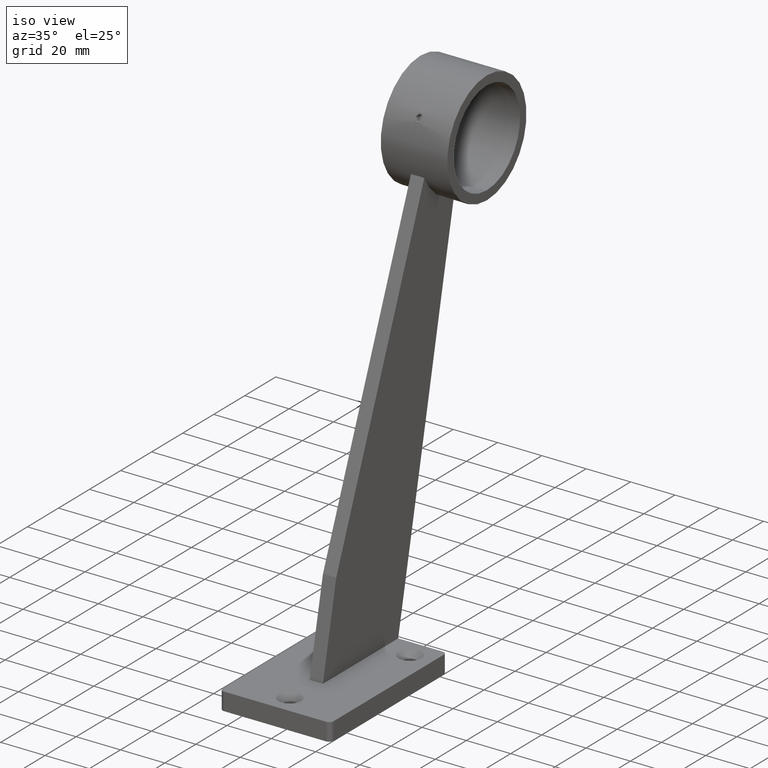
[diagram: clean part render]
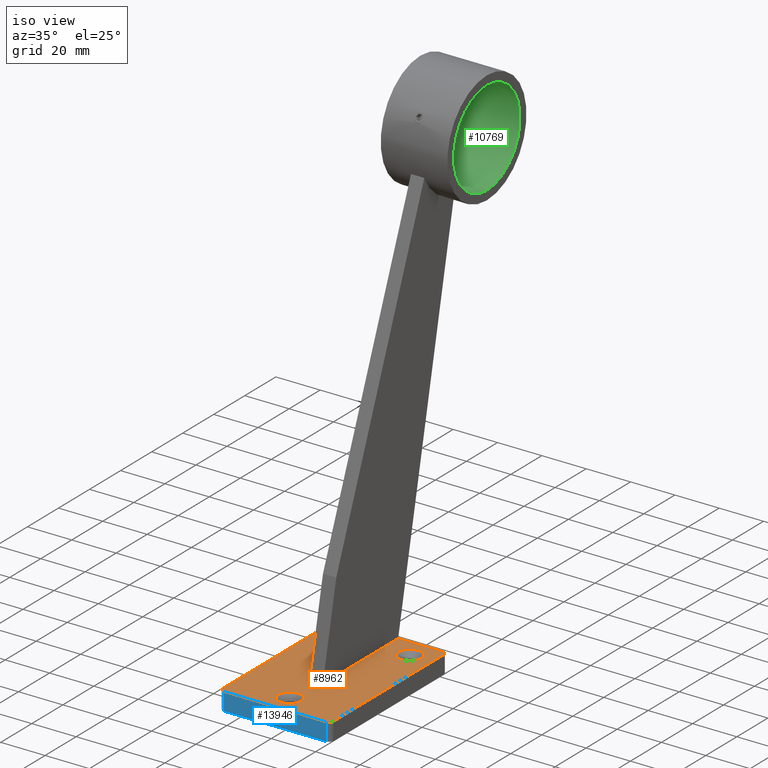
[diagram: same view with three faces highlighted in distinct colors, each labeled with its STEP entity id]
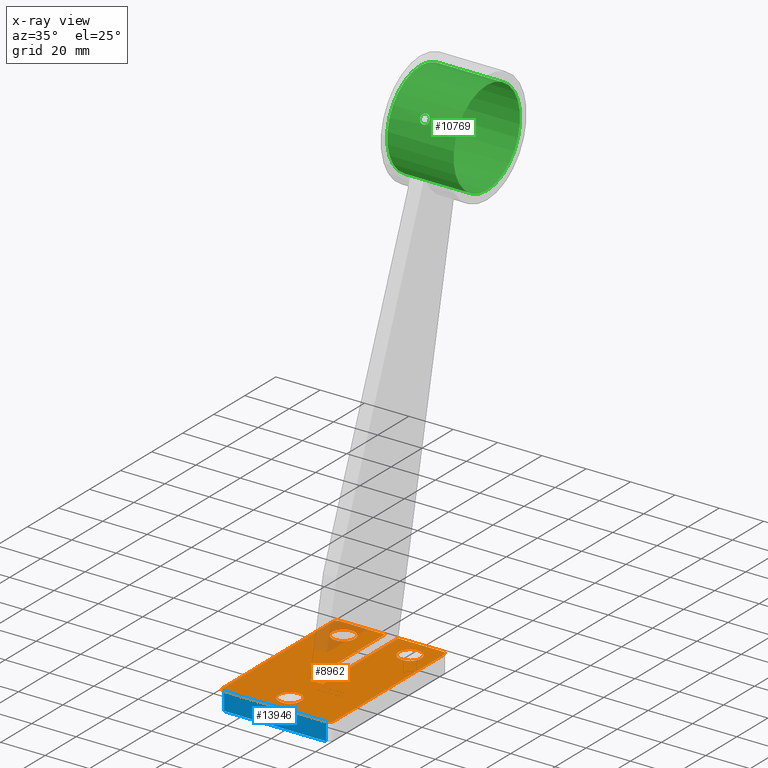
[diagram: x-ray of the same camera — body ghosted, the three highlighted faces saturated]
A machine part, iso view with three faces highlighted in distinct colors.
The next image is the same camera in x-ray (body ghosted, the three faces saturated) — at least one of them is partly hidden behind the body in this view.
Their STEP definitions:

[orange] entity #8962 — the highlighted planar face has unit normal (0, 0, 1).
#169 = VECTOR ( 'NONE', #6945, 1000.000000000000000 ) ;
#170 = VECTOR ( 'NONE', #673, 1000.000000000000000 ) ;
#673 = DIRECTION ( 'NONE',  ( 0.000000000000000000, -1.000000000000000000, 0.000000000000000000 ) ) ;
#944 = VERTEX_POINT ( 'NONE', #5038 ) ;
#949 = AXIS2_PLACEMENT_3D ( 'NONE', #1888, #1795, #11028 ) ;
#1007 = CARTESIAN_POINT ( 'NONE',  ( 22.99999999999999645, 35.50000000000000000, 8.000000000000000000 ) ) ;
#1115 = CARTESIAN_POINT ( 'NONE',  ( -23.00000000000000000, -35.50000000000000000, 8.000000000000000000 ) ) ;
#1157 = DIRECTION ( 'NONE',  ( -0.000000000000000000, 0.000000000000000000, 1.000000000000000000 ) ) ;
#1194 = EDGE_LOOP ( 'NONE', ( #5196 ) ) ;
#1216 = EDGE_LOOP ( 'NONE', ( #9152, #3372, #4034, #12821, #7150, #13023, #6757, #12934, #5566, #7648, #1704, #8627 ) ) ;
#1374 = EDGE_LOOP ( 'NONE', ( #6038 ) ) ;
#1525 = VERTEX_POINT ( 'NONE', #14377 ) ;
#1670 = CARTESIAN_POINT ( 'NONE',  ( 5.099999999999999645, -27.99999999999999645, 8.000000000000000000 ) ) ;
#1704 = ORIENTED_EDGE ( 'NONE', *, *, #12294, .T. ) ;
#1795 = DIRECTION ( 'NONE',  ( -0.000000000000000000, -0.000000000000000000, 1.000000000000000000 ) ) ;
#1858 = CARTESIAN_POINT ( 'NONE',  ( -24.99999999999999645, -37.50000000000000000, 8.000000000000000000 ) ) ;
#1888 = CARTESIAN_POINT ( 'NONE',  ( 15.00000000000000355, 27.99999999999999645, 8.000000000000000000 ) ) ;
#1964 = CIRCLE ( 'NONE', #9180, 2.000000000000001776 ) ;
#2031 = CIRCLE ( 'NONE', #14310, 1.999999999999998224 ) ;
#2061 = CIRCLE ( 'NONE', #5393, 2.000000000000001776 ) ;
#2191 = CARTESIAN_POINT ( 'NONE',  ( 0.000000000000000000, 0.000000000000000000, 8.000000000000000000 ) ) ;
#2218 = DIRECTION ( 'NONE',  ( 1.000000000000000000, 0.000000000000000000, 0.000000000000000000 ) ) ;
#2224 = VECTOR ( 'NONE', #9117, 1000.000000000000000 ) ;
#2294 = VERTEX_POINT ( 'NONE', #13479 ) ;
#2427 = EDGE_CURVE ( 'NONE', #6153, #6153, #8975, .T. ) ;
#2480 = FACE_BOUND ( 'NONE', #11087, .T. ) ;
#2483 = EDGE_CURVE ( 'NONE', #14098, #1525, #9879, .T. ) ;
#2528 = CARTESIAN_POINT ( 'NONE',  ( 3.000000000000000000, 0.000000000000000000, 8.000000000000000000 ) ) ;
#2546 = VERTEX_POINT ( 'NONE', #8990 ) ;
#3161 = CIRCLE ( 'NONE', #949, 5.100000000000000533 ) ;
#3347 = DIRECTION ( 'NONE',  ( -0.000000000000000000, 0.000000000000000000, 1.000000000000000000 ) ) ;
#3372 = ORIENTED_EDGE ( 'NONE', *, *, #13991, .T. ) ;
#3377 = CARTESIAN_POINT ( 'NONE',  ( 25.00000000000000000, 37.50000000000000000, 8.000000000000000000 ) ) ;
#3718 = CARTESIAN_POINT ( 'NONE',  ( -25.00000000000000355, 37.50000000000000000, 8.000000000000000000 ) ) ;
#3852 = VERTEX_POINT ( 'NONE', #12949 ) ;
#3857 = AXIS2_PLACEMENT_3D ( 'NONE', #5085, #10632, #11902 ) ;
#3903 = LINE ( 'NONE', #1858, #13766 ) ;
#4004 = DIRECTION ( 'NONE',  ( 1.000000000000000000, 0.000000000000000000, 0.000000000000000000 ) ) ;
#4034 = ORIENTED_EDGE ( 'NONE', *, *, #11790, .T. ) ;
#4142 = AXIS2_PLACEMENT_3D ( 'NONE', #1007, #12529, #2218 ) ;
#4171 = CARTESIAN_POINT ( 'NONE',  ( -3.000000000000000000, 37.49999999999999289, 8.000000000000001776 ) ) ;
#4859 = LINE ( 'NONE', #3718, #11120 ) ;
#4985 = FACE_BOUND ( 'NONE', #1194, .T. ) ;
#5001 = DIRECTION ( 'NONE',  ( -0.000000000000000000, -0.000000000000000000, 1.000000000000000000 ) ) ;
#5038 = CARTESIAN_POINT ( 'NONE',  ( 20.10000000000000497, 27.99999999999999645, 8.000000000000000000 ) ) ;
#5085 = CARTESIAN_POINT ( 'NONE',  ( 0.000000000000000000, -27.99999999999999645, 8.000000000000000000 ) ) ;
#5196 = ORIENTED_EDGE ( 'NONE', *, *, #13659, .F. ) ;
#5229 = VERTEX_POINT ( 'NONE', #10388 ) ;
#5393 = AXIS2_PLACEMENT_3D ( 'NONE', #8119, #5839, #13965 ) ;
#5409 = VECTOR ( 'NONE', #11841, 1000.000000000000000 ) ;
#5566 = ORIENTED_EDGE ( 'NONE', *, *, #6973, .T. ) ;
#5819 = LINE ( 'NONE', #3377, #2224 ) ;
#5839 = DIRECTION ( 'NONE',  ( -0.000000000000000000, 0.000000000000000000, 1.000000000000000000 ) ) ;
#6038 = ORIENTED_EDGE ( 'NONE', *, *, #10614, .F. ) ;
#6153 = VERTEX_POINT ( 'NONE', #9842 ) ;
#6264 = VERTEX_POINT ( 'NONE', #10945 ) ;
#6434 = AXIS2_PLACEMENT_3D ( 'NONE', #14255, #5001, #4004 ) ;
#6476 = EDGE_CURVE ( 'NONE', #13806, #2294, #1964, .T. ) ;
#6587 = DIRECTION ( 'NONE',  ( 1.000000000000000000, 0.000000000000000000, 0.000000000000000000 ) ) ;
#6757 = ORIENTED_EDGE ( 'NONE', *, *, #14510, .T. ) ;
#6938 = VERTEX_POINT ( 'NONE', #14159 ) ;
#6945 = DIRECTION ( 'NONE',  ( 9.251858538542971581E-17, -1.000000000000000000, 0.000000000000000000 ) ) ;
#6973 = EDGE_CURVE ( 'NONE', #2546, #8464, #4859, .T. ) ;
#7073 = CIRCLE ( 'NONE', #4142, 1.999999999999998224 ) ;
#7150 = ORIENTED_EDGE ( 'NONE', *, *, #9188, .T. ) ;
#7413 = VERTEX_POINT ( 'NONE', #1670 ) ;
#7605 = LINE ( 'NONE', #9552, #14565 ) ;
#7648 = ORIENTED_EDGE ( 'NONE', *, *, #11470, .T. ) ;
#8119 = CARTESIAN_POINT ( 'NONE',  ( -23.00000000000000711, 35.50000000000000000, 8.000000000000000000 ) ) ;
#8459 = ORIENTED_EDGE ( 'NONE', *, *, #2427, .F. ) ;
#8464 = VERTEX_POINT ( 'NONE', #12672 ) ;
#8627 = ORIENTED_EDGE ( 'NONE', *, *, #2483, .F. ) ;
#8864 = CARTESIAN_POINT ( 'NONE',  ( -24.99999999999999645, -35.50000000000000000, 8.000000000000000000 ) ) ;
#8959 = FACE_OUTER_BOUND ( 'NONE', #1216, .T. ) ;
#8962 = ADVANCED_FACE ( 'NONE', ( #2480, #9338, #4985, #8959 ), #13560, .T. ) ;
#8975 = CIRCLE ( 'NONE', #6434, 5.099999999999998757 ) ;
#8990 = CARTESIAN_POINT ( 'NONE',  ( 22.99999999999999645, 37.50000000000000000, 8.000000000000000000 ) ) ;
#9117 = DIRECTION ( 'NONE',  ( -4.625929269271485791E-17, 1.000000000000000000, -0.000000000000000000 ) ) ;
#9152 = ORIENTED_EDGE ( 'NONE', *, *, #14842, .T. ) ;
#9180 = AXIS2_PLACEMENT_3D ( 'NONE', #1115, #1157, #13847 ) ;
#9188 = EDGE_CURVE ( 'NONE', #2294, #6264, #3903, .T. ) ;
#9215 = CARTESIAN_POINT ( 'NONE',  ( 3.000000000000000000, -11.00000000000000355, 8.000000000000000000 ) ) ;
#9338 = FACE_BOUND ( 'NONE', #1374, .T. ) ;
#9447 = CARTESIAN_POINT ( 'NONE',  ( -25.00000000000000355, 35.50000000000000000, 8.000000000000000000 ) ) ;
#9552 = CARTESIAN_POINT ( 'NONE',  ( -25.00000000000000355, 37.50000000000000000, 8.000000000000000000 ) ) ;
#9564 = AXIS2_PLACEMENT_3D ( 'NONE', #2191, #3347, #14748 ) ;
#9791 = CARTESIAN_POINT ( 'NONE',  ( 23.00000000000000355, -35.50000000000000000, 8.000000000000000000 ) ) ;
#9839 = CARTESIAN_POINT ( 'NONE',  ( -3.000000000000000000, 0.000000000000000000, 8.000000000000000000 ) ) ;
#9842 = CARTESIAN_POINT ( 'NONE',  ( -9.900000000000005684, 27.99999999999999645, 8.000000000000000000 ) ) ;
#9879 = LINE ( 'NONE', #9839, #170 ) ;
#9906 = LINE ( 'NONE', #2528, #5409 ) ;
#10388 = CARTESIAN_POINT ( 'NONE',  ( 3.000000000000000000, -11.00000000000000355, 8.000000000000000000 ) ) ;
#10614 = EDGE_CURVE ( 'NONE', #944, #944, #3161, .T. ) ;
#10632 = DIRECTION ( 'NONE',  ( -0.000000000000000000, -0.000000000000000000, 1.000000000000000000 ) ) ;
#10945 = CARTESIAN_POINT ( 'NONE',  ( 23.00000000000000355, -37.50000000000000000, 8.000000000000000000 ) ) ;
#11027 = CIRCLE ( 'NONE', #3857, 5.099999999999999645 ) ;
#11028 = DIRECTION ( 'NONE',  ( 1.000000000000000000, 0.000000000000000000, 0.000000000000000000 ) ) ;
#11087 = EDGE_LOOP ( 'NONE', ( #8459 ) ) ;
#11120 = VECTOR ( 'NONE', #11816, 1000.000000000000000 ) ;
#11470 = EDGE_CURVE ( 'NONE', #8464, #5229, #9906, .T. ) ;
#11492 = DIRECTION ( 'NONE',  ( -1.000000000000000000, -0.000000000000000000, -0.000000000000000000 ) ) ;
#11790 = EDGE_CURVE ( 'NONE', #13562, #13806, #13621, .T. ) ;
#11816 = DIRECTION ( 'NONE',  ( -1.000000000000000000, -0.000000000000000000, -0.000000000000000000 ) ) ;
#11841 = DIRECTION ( 'NONE',  ( 0.000000000000000000, -1.000000000000000000, 0.000000000000000000 ) ) ;
#11902 = DIRECTION ( 'NONE',  ( 1.000000000000000000, 0.000000000000000000, 0.000000000000000000 ) ) ;
#12057 = DIRECTION ( 'NONE',  ( -1.000000000000000000, -0.000000000000000000, -0.000000000000000000 ) ) ;
#12294 = EDGE_CURVE ( 'NONE', #5229, #1525, #14607, .T. ) ;
#12307 = VERTEX_POINT ( 'NONE', #14821 ) ;
#12529 = DIRECTION ( 'NONE',  ( -0.000000000000000000, 0.000000000000000000, 1.000000000000000000 ) ) ;
#12672 = CARTESIAN_POINT ( 'NONE',  ( 3.000000000000000000, 37.49999999999999289, 8.000000000000001776 ) ) ;
#12821 = ORIENTED_EDGE ( 'NONE', *, *, #6476, .T. ) ;
#12934 = ORIENTED_EDGE ( 'NONE', *, *, #14535, .T. ) ;
#12949 = CARTESIAN_POINT ( 'NONE',  ( -23.00000000000000711, 37.50000000000000000, 8.000000000000000000 ) ) ;
#13023 = ORIENTED_EDGE ( 'NONE', *, *, #14818, .T. ) ;
#13266 = DIRECTION ( 'NONE',  ( 1.000000000000000000, 0.000000000000000000, 0.000000000000000000 ) ) ;
#13479 = CARTESIAN_POINT ( 'NONE',  ( -23.00000000000000000, -37.50000000000000000, 8.000000000000000000 ) ) ;
#13547 = VECTOR ( 'NONE', #11492, 1000.000000000000000 ) ;
#13560 = PLANE ( 'NONE',  #9564 ) ;
#13562 = VERTEX_POINT ( 'NONE', #9447 ) ;
#13621 = LINE ( 'NONE', #14777, #169 ) ;
#13659 = EDGE_CURVE ( 'NONE', #7413, #7413, #11027, .T. ) ;
#13766 = VECTOR ( 'NONE', #6587, 1000.000000000000000 ) ;
#13806 = VERTEX_POINT ( 'NONE', #8864 ) ;
#13847 = DIRECTION ( 'NONE',  ( 1.000000000000000000, 0.000000000000000000, 0.000000000000000000 ) ) ;
#13965 = DIRECTION ( 'NONE',  ( 1.000000000000000000, 0.000000000000000000, 0.000000000000000000 ) ) ;
#13991 = EDGE_CURVE ( 'NONE', #3852, #13562, #2061, .T. ) ;
#14098 = VERTEX_POINT ( 'NONE', #4171 ) ;
#14159 = CARTESIAN_POINT ( 'NONE',  ( 25.00000000000000000, 35.50000000000000000, 8.000000000000000000 ) ) ;
#14255 = CARTESIAN_POINT ( 'NONE',  ( -15.00000000000000533, 27.99999999999999645, 8.000000000000000000 ) ) ;
#14310 = AXIS2_PLACEMENT_3D ( 'NONE', #9791, #14312, #13266 ) ;
#14312 = DIRECTION ( 'NONE',  ( -0.000000000000000000, 0.000000000000000000, 1.000000000000000000 ) ) ;
#14377 = CARTESIAN_POINT ( 'NONE',  ( -3.000000000000000000, -11.00000000000000355, 8.000000000000000000 ) ) ;
#14510 = EDGE_CURVE ( 'NONE', #12307, #6938, #5819, .T. ) ;
#14535 = EDGE_CURVE ( 'NONE', #6938, #2546, #7073, .T. ) ;
#14565 = VECTOR ( 'NONE', #12057, 1000.000000000000000 ) ;
#14607 = LINE ( 'NONE', #9215, #13547 ) ;
#14748 = DIRECTION ( 'NONE',  ( 1.000000000000000000, 0.000000000000000000, 0.000000000000000000 ) ) ;
#14777 = CARTESIAN_POINT ( 'NONE',  ( -25.00000000000000355, 37.50000000000000000, 8.000000000000000000 ) ) ;
#14818 = EDGE_CURVE ( 'NONE', #6264, #12307, #2031, .T. ) ;
#14821 = CARTESIAN_POINT ( 'NONE',  ( 25.00000000000000355, -35.50000000000000000, 8.000000000000000000 ) ) ;
#14842 = EDGE_CURVE ( 'NONE', #14098, #3852, #7605, .T. ) ;

[blue] entity #13946 — the highlighted planar face has unit normal (0, 1, 0).
#507 = VECTOR ( 'NONE', #1189, 1000.000000000000000 ) ;
#1189 = DIRECTION ( 'NONE',  ( 1.000000000000000000, 0.000000000000000000, 0.000000000000000000 ) ) ;
#1858 = CARTESIAN_POINT ( 'NONE',  ( -24.99999999999999645, -37.50000000000000000, 8.000000000000000000 ) ) ;
#1950 = LINE ( 'NONE', #5754, #507 ) ;
#2034 = AXIS2_PLACEMENT_3D ( 'NONE', #6702, #10234, #8977 ) ;
#2294 = VERTEX_POINT ( 'NONE', #13479 ) ;
#2612 = EDGE_CURVE ( 'NONE', #6374, #11959, #1950, .T. ) ;
#3903 = LINE ( 'NONE', #1858, #13766 ) ;
#4134 = ORIENTED_EDGE ( 'NONE', *, *, #9090, .T. ) ;
#4481 = LINE ( 'NONE', #8510, #13974 ) ;
#4800 = CARTESIAN_POINT ( 'NONE',  ( 23.00000000000000355, -37.50000000000000000, 8.000000000000000000 ) ) ;
#5632 = CARTESIAN_POINT ( 'NONE',  ( -23.00000000000000000, -37.50000000000000000, 0.000000000000000000 ) ) ;
#5754 = CARTESIAN_POINT ( 'NONE',  ( -24.99999999999999645, -37.50000000000000000, 0.000000000000000000 ) ) ;
#5902 = DIRECTION ( 'NONE',  ( -0.000000000000000000, -0.000000000000000000, 1.000000000000000000 ) ) ;
#5933 = CARTESIAN_POINT ( 'NONE',  ( 23.00000000000000355, -37.50000000000000000, 0.000000000000000000 ) ) ;
#6264 = VERTEX_POINT ( 'NONE', #10945 ) ;
#6374 = VERTEX_POINT ( 'NONE', #5632 ) ;
#6587 = DIRECTION ( 'NONE',  ( 1.000000000000000000, 0.000000000000000000, 0.000000000000000000 ) ) ;
#6702 = CARTESIAN_POINT ( 'NONE',  ( -24.99999999999999645, -37.50000000000000000, 8.000000000000000000 ) ) ;
#6751 = PLANE ( 'NONE',  #2034 ) ;
#6965 = LINE ( 'NONE', #4800, #11955 ) ;
#7617 = FACE_OUTER_BOUND ( 'NONE', #13124, .T. ) ;
#7839 = EDGE_CURVE ( 'NONE', #2294, #6374, #4481, .T. ) ;
#8510 = CARTESIAN_POINT ( 'NONE',  ( -23.00000000000000000, -37.50000000000000000, 8.000000000000000000 ) ) ;
#8977 = DIRECTION ( 'NONE',  ( 0.000000000000000000, -0.000000000000000000, 1.000000000000000000 ) ) ;
#9090 = EDGE_CURVE ( 'NONE', #11959, #6264, #6965, .T. ) ;
#9188 = EDGE_CURVE ( 'NONE', #2294, #6264, #3903, .T. ) ;
#10234 = DIRECTION ( 'NONE',  ( 0.000000000000000000, 1.000000000000000000, 0.000000000000000000 ) ) ;
#10718 = ORIENTED_EDGE ( 'NONE', *, *, #7839, .T. ) ;
#10945 = CARTESIAN_POINT ( 'NONE',  ( 23.00000000000000355, -37.50000000000000000, 8.000000000000000000 ) ) ;
#11955 = VECTOR ( 'NONE', #5902, 1000.000000000000000 ) ;
#11959 = VERTEX_POINT ( 'NONE', #5933 ) ;
#13124 = EDGE_LOOP ( 'NONE', ( #14235, #10718, #13950, #4134 ) ) ;
#13155 = DIRECTION ( 'NONE',  ( -0.000000000000000000, 0.000000000000000000, -1.000000000000000000 ) ) ;
#13479 = CARTESIAN_POINT ( 'NONE',  ( -23.00000000000000000, -37.50000000000000000, 8.000000000000000000 ) ) ;
#13766 = VECTOR ( 'NONE', #6587, 1000.000000000000000 ) ;
#13946 = ADVANCED_FACE ( 'NONE', ( #7617 ), #6751, .F. ) ;
#13950 = ORIENTED_EDGE ( 'NONE', *, *, #2612, .T. ) ;
#13974 = VECTOR ( 'NONE', #13155, 1000.000000000000000 ) ;
#14235 = ORIENTED_EDGE ( 'NONE', *, *, #9188, .F. ) ;

[green] entity #10769 — the highlighted cylindrical surface (bore or boss wall) has radius 21.4 mm, axis along (1, 0, 0).
#288 = DIRECTION ( 'NONE',  ( 0.000000000000000000, 0.000000000000000000, -1.000000000000000000 ) ) ;
#436 = CARTESIAN_POINT ( 'NONE',  ( 1.280292752947052026, 58.18835474311134703, 209.2209653528536535 ) ) ;
#491 = CARTESIAN_POINT ( 'NONE',  ( 2.099850055833622609, 58.82945200548817866, 210.4616328400623786 ) ) ;
#539 = CARTESIAN_POINT ( 'NONE',  ( 0.6772246510522037521, 58.05122871341706769, 208.9279391555240295 ) ) ;
#592 = B_SPLINE_CURVE_WITH_KNOTS ( 'NONE', 3,
 ( #9651, #841, #11915, #8622, #539, #13121, #7372, #436, #5010, #5159, #8480, #13022, #491, #6164, #1951, #1643, #1598, #14176, #9702, #2802, #11967, #10004, #2747, #10835, #6263, #7319, #3106, #14564, #7737, #4268, #9003, #894, #4483, #3371, #9108, #11189, #13525, #943, #6784, #3266, #14672, #7993, #12375, #13686, #9056, #2165, #6722, #12472, #11387, #1106, #3318, #7951, #996, #2252 ),
 .UNSPECIFIED., .T., .F.,
 ( 4, 2, 2, 2, 2, 2, 2, 2, 2, 2, 2, 2, 2, 2, 2, 2, 2, 2, 2, 2, 2, 2, 2, 2, 2, 2, 4 ),
 ( 0.000000000000000000, 0.0004105460817641443604, 0.0008210921635282887208, 0.001231638245292433244, 0.001642184327056577442, 0.002463276490584872126, 0.003284368654113166593, 0.003694914735877272843, 0.004105460817641379094, 0.004516006899405484477, 0.004926552981169590728, 0.005337099062933696979, 0.005747645144697802362, 0.006158191226461907745, 0.006568737308226013996, 0.007389829471754224763, 0.008210921635282435530, 0.008621467717046561730, 0.009032013798810686195, 0.009442559880574812395, 0.009853105962338936860, 0.01026365204410306479, 0.01067419812586718926, 0.01108474420763131546, 0.01149529028939543993, 0.01231638245292363161, 0.01313747461645182329 ),
 .UNSPECIFIED. ) ;
#675 = CARTESIAN_POINT ( 'NONE',  ( -15.00000000000000000, 77.50000000000001421, 178.6000000000000227 ) ) ;
#700 = CIRCLE ( 'NONE', #14620, 21.40000000000000213 ) ;
#841 = CARTESIAN_POINT ( 'NONE',  ( 0.1388255791541870565, 58.00650521186400255, 208.8297033327804115 ) ) ;
#894 = CARTESIAN_POINT ( 'NONE',  ( -1.055424637954775147, 59.95316902837753048, 212.2507038859057786 ) ) ;
#901 = DIRECTION ( 'NONE',  ( 1.000000000000000000, 0.000000000000000000, 0.000000000000000000 ) ) ;
#943 = CARTESIAN_POINT ( 'NONE',  ( -1.991933249782538828, 59.31559492339773954, 211.2828885504668222 ) ) ;
#996 = CARTESIAN_POINT ( 'NONE',  ( -0.2776511583083409729, 58.00650521186400965, 208.8297033327802978 ) ) ;
#1000 = EDGE_CURVE ( 'NONE', #3488, #3488, #700, .T. ) ;
#1106 = CARTESIAN_POINT ( 'NONE',  ( -1.292601770391524907, 58.18454563677648395, 209.2147143527323863 ) ) ;
#1598 = CARTESIAN_POINT ( 'NONE',  ( 1.993166452371324171, 59.31368523552086458, 211.2798116691968175 ) ) ;
#1643 = CARTESIAN_POINT ( 'NONE',  ( 2.032825320515954104, 59.24494008579365101, 211.1683005494737984 ) ) ;
#1951 = CARTESIAN_POINT ( 'NONE',  ( 2.086426510082270980, 59.10577573580327737, 210.9375803244171266 ) ) ;
#1994 = DIRECTION ( 'NONE',  ( 1.000000000000000000, -0.000000000000000000, -0.000000000000000000 ) ) ;
#2165 = CARTESIAN_POINT ( 'NONE',  ( -1.887955711688799942, 58.51931574116694890, 209.8848286782223909 ) ) ;
#2252 = CARTESIAN_POINT ( 'NONE',  ( -2.846030702774449139E-16, 58.00650521186400965, 208.8297033327803831 ) ) ;
#2747 = CARTESIAN_POINT ( 'NONE',  ( 1.281578892835677941, 59.85800628916003063, 212.1130459126289054 ) ) ;
#2802 = CARTESIAN_POINT ( 'NONE',  ( 1.670308372240219663, 59.64005640757602578, 211.7896306247975531 ) ) ;
#3008 = CARTESIAN_POINT ( 'NONE',  ( -15.00000000000000000, 77.50000000000001421, 200.0000000000000000 ) ) ;
#3106 = CARTESIAN_POINT ( 'NONE',  ( 0.5463057129171402515, 60.06697456493678544, 212.4117023477625139 ) ) ;
#3266 = CARTESIAN_POINT ( 'NONE',  ( -2.086124644323506860, 59.10682865877154768, 210.9393451425146111 ) ) ;
#3318 = CARTESIAN_POINT ( 'NONE',  ( -1.058614920235633416, 58.11794712172900290, 209.0723281947732914 ) ) ;
#3371 = CARTESIAN_POINT ( 'NONE',  ( -1.580385098386414944, 59.70080613838188555, 211.8809972289016628 ) ) ;
#3488 = VERTEX_POINT ( 'NONE', #13161 ) ;
#3631 = CIRCLE ( 'NONE', #6930, 21.40000000000000213 ) ;
#4268 = CARTESIAN_POINT ( 'NONE',  ( -0.2733982715196794921, 60.10656404147502485, 212.4670921054958797 ) ) ;
#4483 = CARTESIAN_POINT ( 'NONE',  ( -1.289709301346332326, 59.86335718805749195, 212.1221458261520922 ) ) ;
#4796 = EDGE_CURVE ( 'NONE', #10826, #10826, #3631, .T. ) ;
#4864 = DIRECTION ( 'NONE',  ( 1.000000000000000000, 0.000000000000000000, 0.000000000000000000 ) ) ;
#5010 = CARTESIAN_POINT ( 'NONE',  ( 1.388279953253084953, 58.22675496027720499, 209.3011528108805237 ) ) ;
#5159 = CARTESIAN_POINT ( 'NONE',  ( 1.678658909183698755, 58.35447998387756030, 209.5627786339777288 ) ) ;
#5403 = ORIENTED_EDGE ( 'NONE', *, *, #1000, .T. ) ;
#6164 = CARTESIAN_POINT ( 'NONE',  ( 2.100074502680342459, 59.03499874463555841, 210.8176942859049348 ) ) ;
#6263 = CARTESIAN_POINT ( 'NONE',  ( 0.9315113249473763180, 59.98276070395655069, 212.2926453786614900 ) ) ;
#6542 = EDGE_LOOP ( 'NONE', ( #5403 ) ) ;
#6617 = DIRECTION ( 'NONE',  ( 0.000000000000000000, 0.000000000000000000, -1.000000000000000000 ) ) ;
#6722 = CARTESIAN_POINT ( 'NONE',  ( -1.823543232211616516, 58.46389415238815701, 209.7775120531981372 ) ) ;
#6784 = CARTESIAN_POINT ( 'NONE',  ( -2.032493922070099934, 59.24552809807227050, 211.1692560055079184 ) ) ;
#6930 = AXIS2_PLACEMENT_3D ( 'NONE', #3008, #901, #8746 ) ;
#7028 = EDGE_LOOP ( 'NONE', ( #13275 ) ) ;
#7273 = CYLINDRICAL_SURFACE ( 'NONE', #13533, 21.40000000000000213 ) ;
#7319 = CARTESIAN_POINT ( 'NONE',  ( 0.6771994235588434385, 60.04379807069599906, 212.3791686782166153 ) ) ;
#7372 = CARTESIAN_POINT ( 'NONE',  ( 1.052081333616377457, 58.12296619333427827, 209.0827531851180368 ) ) ;
#7462 = EDGE_CURVE ( 'NONE', #13504, #13504, #592, .T. ) ;
#7572 = CARTESIAN_POINT ( 'NONE',  ( 0.000000000000000000, 58.00650521186399544, 208.8297033327804400 ) ) ;
#7737 = CARTESIAN_POINT ( 'NONE',  ( 0.1378553790264276657, 60.10647567283387360, 212.4669688169513222 ) ) ;
#7951 = CARTESIAN_POINT ( 'NONE',  ( -0.5534965703891724376, 58.02950919232856819, 208.8809402856991824 ) ) ;
#7993 = CARTESIAN_POINT ( 'NONE',  ( -2.100131435777759403, 58.89868314538146876, 210.5815999159085550 ) ) ;
#8480 = CARTESIAN_POINT ( 'NONE',  ( 1.835093140658129229, 58.45988380389628247, 209.7723025901846654 ) ) ;
#8622 = CARTESIAN_POINT ( 'NONE',  ( 0.5438152783740413110, 58.03437024924007659, 208.8910054394950180 ) ) ;
#8746 = DIRECTION ( 'NONE',  ( 0.000000000000000000, 0.000000000000000000, -1.000000000000000000 ) ) ;
#9003 = CARTESIAN_POINT ( 'NONE',  ( -0.5498382531993901701, 60.07421624808424809, 212.4222817339773712 ) ) ;
#9056 = CARTESIAN_POINT ( 'NONE',  ( -1.993204410164770790, 58.63828492696219286, 210.1099909710572149 ) ) ;
#9108 = CARTESIAN_POINT ( 'NONE',  ( -1.669118850366322571, 59.64093640058802492, 211.7909665578901581 ) ) ;
#9651 = CARTESIAN_POINT ( 'NONE',  ( -2.846030702774449139E-16, 58.00650521186400965, 208.8297033327803831 ) ) ;
#9702 = CARTESIAN_POINT ( 'NONE',  ( 1.822251369167930735, 59.51556246025550934, 211.5988353627750200 ) ) ;
#10004 = CARTESIAN_POINT ( 'NONE',  ( 1.387583543028872768, 59.80876782167197092, 212.0411780427059227 ) ) ;
#10769 = ADVANCED_FACE ( 'NONE', ( #12665, #10877, #12477 ), #7273, .F. ) ;
#10826 = VERTEX_POINT ( 'NONE', #675 ) ;
#10835 = CARTESIAN_POINT ( 'NONE',  ( 1.054270820100142059, 59.94484255617937407, 212.2385567162736209 ) ) ;
#10877 = FACE_OUTER_BOUND ( 'NONE', #11049, .T. ) ;
#11049 = EDGE_LOOP ( 'NONE', ( #13274 ) ) ;
#11189 = CARTESIAN_POINT ( 'NONE',  ( -1.821712779272268712, 59.51609732310242862, 211.5996676471786486 ) ) ;
#11387 = CARTESIAN_POINT ( 'NONE',  ( -1.582837040617630642, 58.31239495568324571, 209.4765630440769826 ) ) ;
#11915 = CARTESIAN_POINT ( 'NONE',  ( 0.2753144915945114901, 58.01214565536280077, 208.8421859492438557 ) ) ;
#11967 = CARTESIAN_POINT ( 'NONE',  ( 1.583557221805938164, 59.69888551360615736, 211.8781306477893338 ) ) ;
#12314 = CARTESIAN_POINT ( 'NONE',  ( -15.00000000000000000, 77.50000000000001421, 200.0000000000000000 ) ) ;
#12375 = CARTESIAN_POINT ( 'NONE',  ( -2.086613070881374377, 58.83147557002173045, 210.4625154430906946 ) ) ;
#12472 = CARTESIAN_POINT ( 'NONE',  ( -1.671396324816054380, 58.36052452698312720, 209.5735858699705148 ) ) ;
#12477 = FACE_OUTER_BOUND ( 'NONE', #6542, .T. ) ;
#12665 = FACE_BOUND ( 'NONE', #7028, .T. ) ;
#13022 = CARTESIAN_POINT ( 'NONE',  ( 2.044612486566118381, 58.69607498758589514, 210.2194093177036507 ) ) ;
#13121 = CARTESIAN_POINT ( 'NONE',  ( 0.9314965990478497604, 58.09563477719837721, 209.0240463442227679 ) ) ;
#13161 = CARTESIAN_POINT ( 'NONE',  ( 15.00000000000000000, 77.50000000000001421, 178.6000000000000227 ) ) ;
#13274 = ORIENTED_EDGE ( 'NONE', *, *, #4796, .F. ) ;
#13275 = ORIENTED_EDGE ( 'NONE', *, *, #7462, .T. ) ;
#13504 = VERTEX_POINT ( 'NONE', #7572 ) ;
#13525 = CARTESIAN_POINT ( 'NONE',  ( -1.886310783635653410, 59.45092911132871194, 211.4981390706467437 ) ) ;
#13533 = AXIS2_PLACEMENT_3D ( 'NONE', #12314, #1994, #6617 ) ;
#13686 = CARTESIAN_POINT ( 'NONE',  ( -2.033465300381943397, 58.70164155556370389, 210.2274020935962255 ) ) ;
#13983 = CARTESIAN_POINT ( 'NONE',  ( 15.00000000000000000, 77.50000000000001421, 200.0000000000000000 ) ) ;
#14176 = CARTESIAN_POINT ( 'NONE',  ( 1.887967938481088570, 59.44912646710212556, 211.4953103787844384 ) ) ;
#14564 = CARTESIAN_POINT ( 'NONE',  ( 0.2770945626053211153, 60.09839211325864028, 212.4557125025072821 ) ) ;
#14620 = AXIS2_PLACEMENT_3D ( 'NONE', #13983, #4864, #288 ) ;
#14672 = CARTESIAN_POINT ( 'NONE',  ( -2.099866651669106687, 59.03743382116112315, 210.8218711689922884 ) ) ;